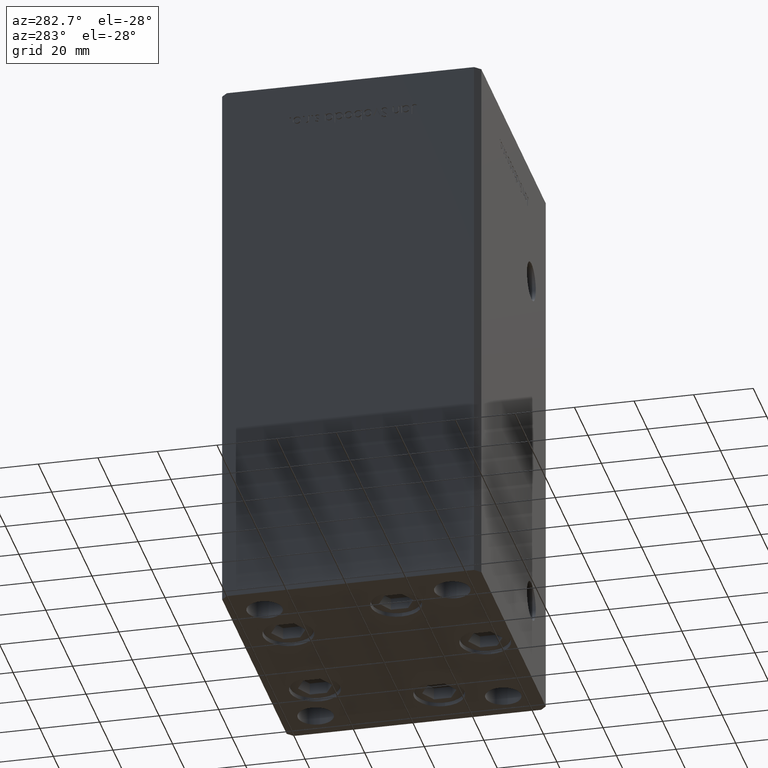
[diagram: clean part render]
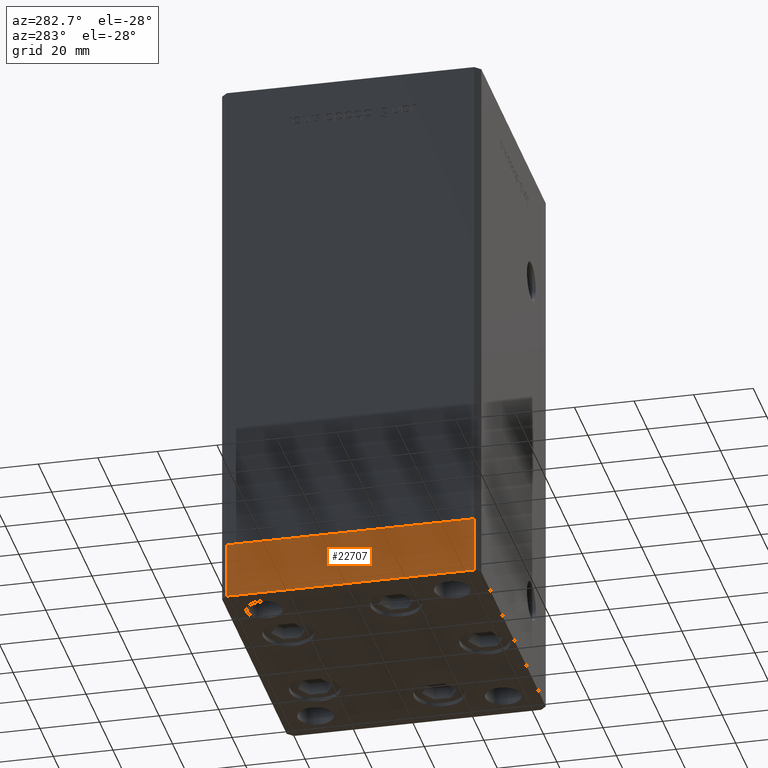
[diagram: same view with one face highlighted and labeled with its STEP entity id]
A machine part, auxiliary view. The second image highlights one B-rep face of the part: STEP entity #22707.
In plain terms, the highlighted planar face has unit normal (-1, 0, 0).
Its self-contained STEP definition (entity closure, byte-faithful):
#174 = CARTESIAN_POINT ( 'NONE',  ( 49.99999999999992184, 41.49999999999998579, -19.00000000000000000 ) ) ;
#1594 = VERTEX_POINT ( 'NONE', #10449 ) ;
#1904 = VECTOR ( 'NONE', #32180, 1000.000000000000000 ) ;
#2519 = LINE ( 'NONE', #33924, #13421 ) ;
#3722 = CARTESIAN_POINT ( 'NONE',  ( 49.99999999999992184, 41.49999999999998579, 0.000000000000000000 ) ) ;
#4096 = ORIENTED_EDGE ( 'NONE', *, *, #25597, .T. ) ;
#4132 = LINE ( 'NONE', #174, #18391 ) ;
#5612 = VERTEX_POINT ( 'NONE', #26221 ) ;
#10449 = CARTESIAN_POINT ( 'NONE',  ( 50.00000000000000000, -41.49999999999999289, 0.000000000000000000 ) ) ;
#12755 = FACE_OUTER_BOUND ( 'NONE', #14845, .T. ) ;
#13421 = VECTOR ( 'NONE', #14387, 1000.000000000000000 ) ;
#14387 = DIRECTION ( 'NONE',  ( -1.003213576468515193E-15, 1.000000000000000000, 0.000000000000000000 ) ) ;
#14632 = VECTOR ( 'NONE', #27009, 1000.000000000000000 ) ;
#14845 = EDGE_LOOP ( 'NONE', ( #51238, #50114, #4096, #37245 ) ) ;
#15683 = VERTEX_POINT ( 'NONE', #37723 ) ;
#18391 = VECTOR ( 'NONE', #40537, 1000.000000000000000 ) ;
#22707 = ADVANCED_FACE ( 'NONE', ( #12755 ), #33594, .T. ) ;
#23360 = EDGE_CURVE ( 'NONE', #5612, #1594, #32447, .T. ) ;
#25597 = EDGE_CURVE ( 'NONE', #5612, #15683, #31770, .T. ) ;
#26221 = CARTESIAN_POINT ( 'NONE',  ( 50.00000000000000000, -41.49999999999999289, -19.00000000000000000 ) ) ;
#27009 = DIRECTION ( 'NONE',  ( -1.003213576468515193E-15, 1.000000000000000000, 0.000000000000000000 ) ) ;
#28599 = DIRECTION ( 'NONE',  ( -1.003213576468515193E-15, 1.000000000000000000, 0.000000000000000000 ) ) ;
#31770 = LINE ( 'NONE', #35198, #14632 ) ;
#32180 = DIRECTION ( 'NONE',  ( 0.000000000000000000, 0.000000000000000000, 1.000000000000000000 ) ) ;
#32447 = LINE ( 'NONE', #40349, #1904 ) ;
#33594 = PLANE ( 'NONE',  #36468 ) ;
#33924 = CARTESIAN_POINT ( 'NONE',  ( 50.00000000000000000, -41.49999999999999289, 0.000000000000000000 ) ) ;
#35198 = CARTESIAN_POINT ( 'NONE',  ( 50.00000000000000000, -41.49999999999999289, -19.00000000000000000 ) ) ;
#36468 = AXIS2_PLACEMENT_3D ( 'NONE', #48642, #36791, #28599 ) ;
#36791 = DIRECTION ( 'NONE',  ( 1.000000000000000000, 1.003213576468515193E-15, -0.000000000000000000 ) ) ;
#37245 = ORIENTED_EDGE ( 'NONE', *, *, #44590, .T. ) ;
#37723 = CARTESIAN_POINT ( 'NONE',  ( 49.99999999999992184, 41.49999999999998579, -19.00000000000000000 ) ) ;
#40349 = CARTESIAN_POINT ( 'NONE',  ( 50.00000000000000000, -41.49999999999999289, -19.00000000000000000 ) ) ;
#40537 = DIRECTION ( 'NONE',  ( 0.000000000000000000, 0.000000000000000000, 1.000000000000000000 ) ) ;
#43473 = VERTEX_POINT ( 'NONE', #3722 ) ;
#44590 = EDGE_CURVE ( 'NONE', #15683, #43473, #4132, .T. ) ;
#47209 = EDGE_CURVE ( 'NONE', #1594, #43473, #2519, .T. ) ;
#48642 = CARTESIAN_POINT ( 'NONE',  ( 50.00000000000000000, -41.49999999999999289, -19.00000000000000000 ) ) ;
#50114 = ORIENTED_EDGE ( 'NONE', *, *, #23360, .F. ) ;
#51238 = ORIENTED_EDGE ( 'NONE', *, *, #47209, .F. ) ;